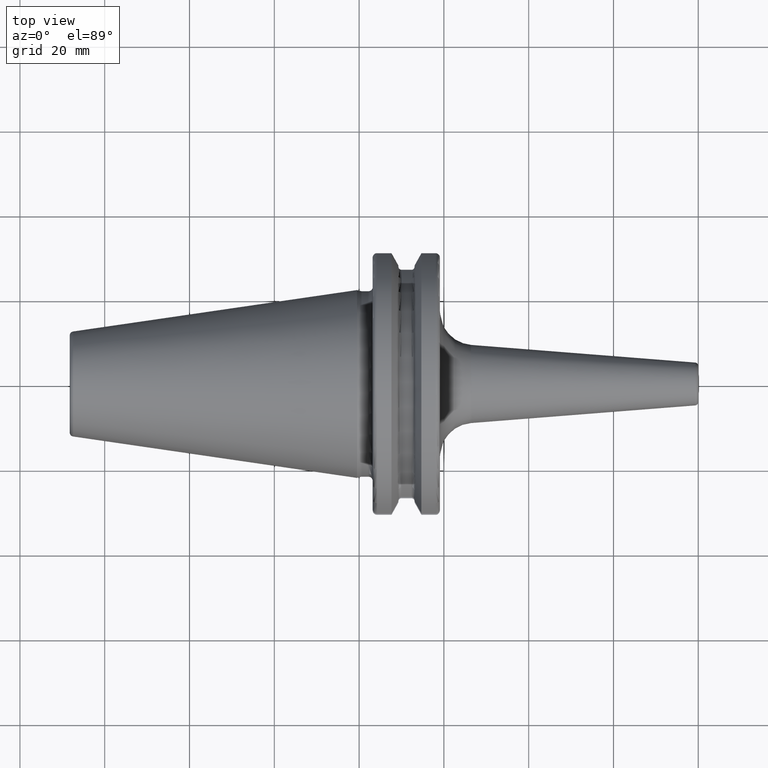
[diagram: clean part render]
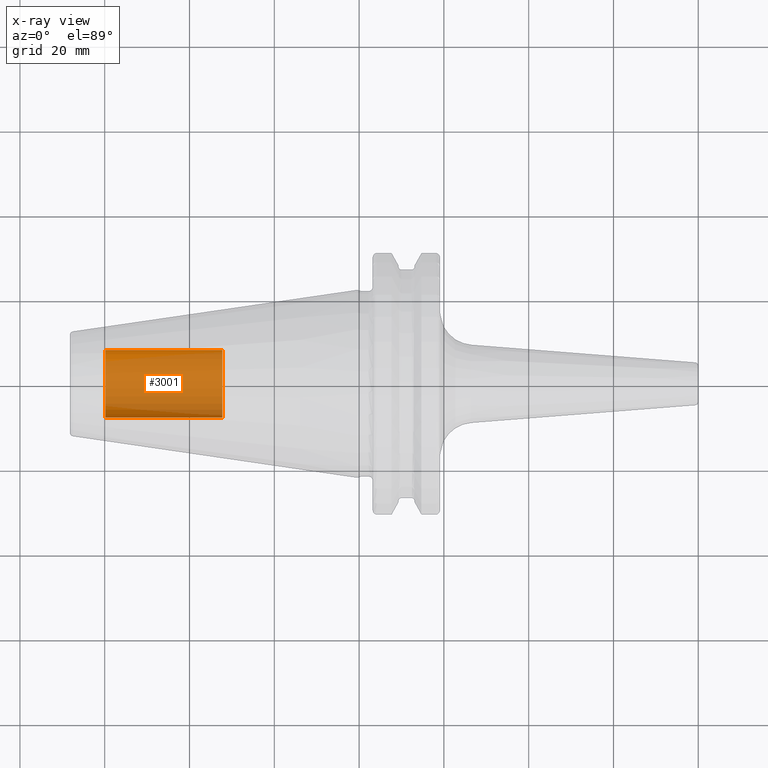
[diagram: x-ray — body ghosted, one internal face saturated and labeled with its STEP entity id]
A machine part, top view, then the same camera in x-ray: the body is ghosted and one INTERNAL B-rep face — a face not visible from any outside direction — is saturated and labeled: STEP entity #3001.
In plain terms, the highlighted cylindrical surface (edge-blend (fillet) strip) has radius 8.0028 mm, axis along (1, 0, 0).
Its self-contained STEP definition (entity closure, byte-faithful):
#2936=CARTESIAN_POINT('',(-5.98E1,0.E0,0.E0));
#2937=DIRECTION('',(-1.E0,0.E0,0.E0));
#2938=DIRECTION('',(0.E0,1.E0,0.E0));
#2939=AXIS2_PLACEMENT_3D('',#2936,#2937,#2938);
#2941=DIRECTION('',(1.E0,0.E0,0.E0));
#2942=VECTOR('',#2941,2.755E1);
#2943=CARTESIAN_POINT('',(-5.98E1,-8.00275E0,0.E0));
#2944=LINE('',#2943,#2942);
#2950=DIRECTION('',(1.E0,0.E0,0.E0));
#2951=VECTOR('',#2950,2.755E1);
#2952=CARTESIAN_POINT('',(-5.98E1,8.00275E0,0.E0));
#2953=LINE('',#2952,#2951);
#2959=CARTESIAN_POINT('',(-3.225E1,0.E0,0.E0));
#2960=DIRECTION('',(1.E0,0.E0,0.E0));
#2961=DIRECTION('',(0.E0,-1.E0,0.E0));
#2962=AXIS2_PLACEMENT_3D('',#2959,#2960,#2961);
#2974=CARTESIAN_POINT('',(-5.98E1,8.00275E0,0.E0));
#2975=CARTESIAN_POINT('',(-5.98E1,-8.00275E0,0.E0));
#2976=VERTEX_POINT('',#2974);
#2977=VERTEX_POINT('',#2975);
#2978=CARTESIAN_POINT('',(-3.225E1,8.00275E0,0.E0));
#2979=CARTESIAN_POINT('',(-3.225E1,-8.00275E0,0.E0));
#2980=VERTEX_POINT('',#2978);
#2981=VERTEX_POINT('',#2979);
#2986=CARTESIAN_POINT('',(-5.98E1,0.E0,0.E0));
#2987=DIRECTION('',(1.E0,0.E0,0.E0));
#2988=DIRECTION('',(0.E0,1.E0,0.E0));
#2989=AXIS2_PLACEMENT_3D('',#2986,#2987,#2988);
#2990=CYLINDRICAL_SURFACE('',#2989,8.00275E0);
#2992=ORIENTED_EDGE('',*,*,#2991,.T.);
#2994=ORIENTED_EDGE('',*,*,#2993,.T.);
#2996=ORIENTED_EDGE('',*,*,#2995,.T.);
#2998=ORIENTED_EDGE('',*,*,#2997,.F.);
#2999=EDGE_LOOP('',(#2992,#2994,#2996,#2998));
#3000=FACE_OUTER_BOUND('',#2999,.F.);
#3001=ADVANCED_FACE('',(#3000),#2990,.T.);
#2940=CIRCLE('',#2939,8.00275E0);
#2963=CIRCLE('',#2962,8.00275E0);
#2991=EDGE_CURVE('',#2976,#2977,#2940,.T.);
#2993=EDGE_CURVE('',#2977,#2981,#2944,.T.);
#2995=EDGE_CURVE('',#2981,#2980,#2963,.T.);
#2997=EDGE_CURVE('',#2976,#2980,#2953,.T.);